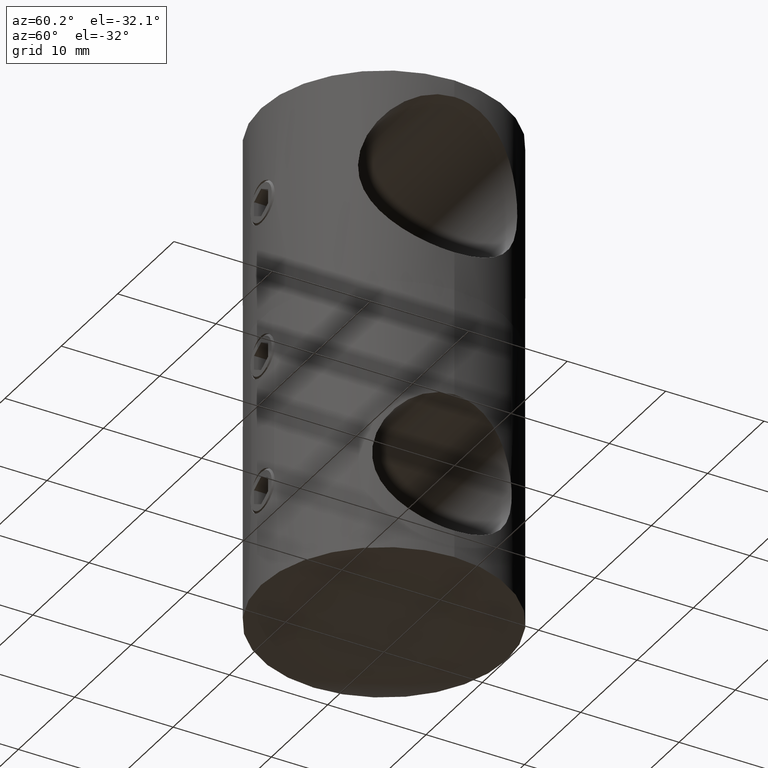
[diagram: clean part render]
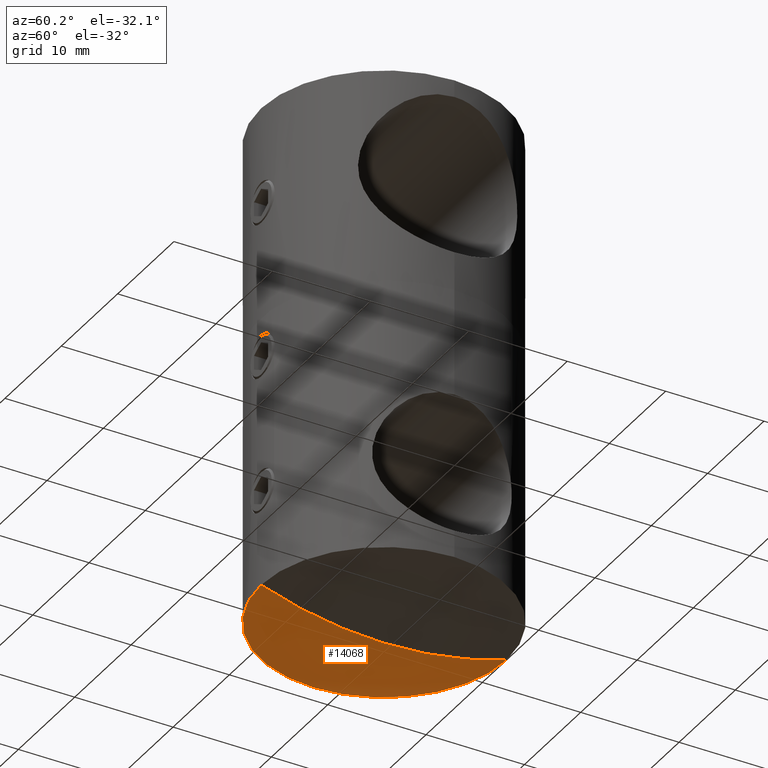
[diagram: same view with one face highlighted and labeled with its STEP entity id]
A machine part, auxiliary view. The second image highlights one B-rep face of the part: STEP entity #14068.
In plain terms, the highlighted spherical surface has radius 37 mm.
Its self-contained STEP definition (entity closure, byte-faithful):
#390 = AXIS2_PLACEMENT_3D ( 'NONE', #11426, #9791, #6966 ) ;
#616 = AXIS2_PLACEMENT_3D ( 'NONE', #3803, #12503, #12632 ) ;
#2376 = CIRCLE ( 'NONE', #616, 12.49999999999999822 ) ;
#2535 = VERTEX_POINT ( 'NONE', #15671 ) ;
#3458 = CIRCLE ( 'NONE', #390, 37.00000000000000000 ) ;
#3686 = VERTEX_POINT ( 'NONE', #14013 ) ;
#3803 = CARTESIAN_POINT ( 'NONE',  ( 0.000000000000000000, 8.964901825574695679E-16, 12.82456029873169712 ) ) ;
#4933 = SPHERICAL_SURFACE ( 'NONE', #12260, 37.00000000000000000 ) ;
#5147 = VERTEX_POINT ( 'NONE', #15200 ) ;
#5706 = EDGE_CURVE ( 'NONE', #3686, #9214, #18552, .T. ) ;
#5854 = CARTESIAN_POINT ( 'NONE',  ( 1.530808498934191127E-15, -12.49999999999999645, 12.82456029873169712 ) ) ;
#6780 = CARTESIAN_POINT ( 'NONE',  ( 0.000000000000000000, 8.964901825574695679E-16, 12.82456029873169712 ) ) ;
#6865 = EDGE_CURVE ( 'NONE', #2535, #9214, #2376, .T. ) ;
#6966 = DIRECTION ( 'NONE',  ( 0.000000000000000000, 0.000000000000000000, 1.000000000000000000 ) ) ;
#7753 = ORIENTED_EDGE ( 'NONE', *, *, #6865, .F. ) ;
#7801 = EDGE_CURVE ( 'NONE', #5147, #2535, #12463, .T. ) ;
#8014 = DIRECTION ( 'NONE',  ( 1.000000000000000000, 0.000000000000000000, 0.000000000000000000 ) ) ;
#8261 = AXIS2_PLACEMENT_3D ( 'NONE', #9334, #13773, #15027 ) ;
#8845 = AXIS2_PLACEMENT_3D ( 'NONE', #6780, #18370, #15317 ) ;
#9214 = VERTEX_POINT ( 'NONE', #5854 ) ;
#9223 = CARTESIAN_POINT ( 'NONE',  ( 0.000000000000000000, 8.964901825574695679E-16, -22.00000000000000000 ) ) ;
#9334 = CARTESIAN_POINT ( 'NONE',  ( 0.000000000000000000, 8.964901825574695679E-16, -22.00000000000000000 ) ) ;
#9517 = EDGE_LOOP ( 'NONE', ( #16584, #18384, #7753, #11631 ) ) ;
#9791 = DIRECTION ( 'NONE',  ( -1.000000000000000000, 0.000000000000000000, 0.000000000000000000 ) ) ;
#10228 = EDGE_CURVE ( 'NONE', #3686, #5147, #3458, .T. ) ;
#11426 = CARTESIAN_POINT ( 'NONE',  ( 0.000000000000000000, 8.964901825574695679E-16, -22.00000000000000000 ) ) ;
#11631 = ORIENTED_EDGE ( 'NONE', *, *, #7801, .F. ) ;
#12260 = AXIS2_PLACEMENT_3D ( 'NONE', #9223, #8014, #14972 ) ;
#12463 = CIRCLE ( 'NONE', #8845, 12.49999999999999822 ) ;
#12503 = DIRECTION ( 'NONE',  ( -0.000000000000000000, -0.000000000000000000, -1.000000000000000000 ) ) ;
#12632 = DIRECTION ( 'NONE',  ( -1.000000000000000000, 0.000000000000000000, 0.000000000000000000 ) ) ;
#13773 = DIRECTION ( 'NONE',  ( 1.000000000000000000, 1.224646799147353207E-16, -0.000000000000000000 ) ) ;
#13908 = FACE_OUTER_BOUND ( 'NONE', #9517, .T. ) ;
#14013 = CARTESIAN_POINT ( 'NONE',  ( 0.000000000000000000, 3.162086760980072767E-15, 15.00000000000000000 ) ) ;
#14068 = ADVANCED_FACE ( 'NONE', ( #13908 ), #4933, .T. ) ;
#14972 = DIRECTION ( 'NONE',  ( 0.000000000000000000, 1.000000000000000000, 0.000000000000000000 ) ) ;
#15027 = DIRECTION ( 'NONE',  ( -1.224646799147353207E-16, 1.000000000000000000, 0.000000000000000000 ) ) ;
#15200 = CARTESIAN_POINT ( 'NONE',  ( 0.000000000000000000, 12.50000000000000000, 12.82456029873169712 ) ) ;
#15317 = DIRECTION ( 'NONE',  ( -1.000000000000000000, 0.000000000000000000, 0.000000000000000000 ) ) ;
#15671 = CARTESIAN_POINT ( 'NONE',  ( 12.49999999999999822, 2.427298681491661089E-15, 12.82456029873169712 ) ) ;
#16584 = ORIENTED_EDGE ( 'NONE', *, *, #10228, .F. ) ;
#18370 = DIRECTION ( 'NONE',  ( -0.000000000000000000, -0.000000000000000000, -1.000000000000000000 ) ) ;
#18384 = ORIENTED_EDGE ( 'NONE', *, *, #5706, .T. ) ;
#18552 = CIRCLE ( 'NONE', #8261, 37.00000000000000000 ) ;